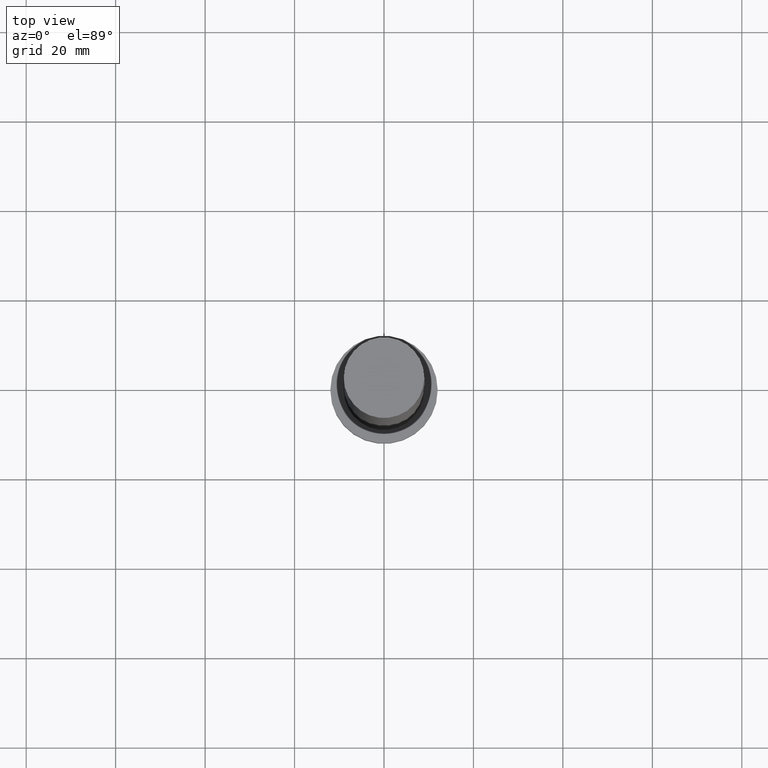
[diagram: clean part render]
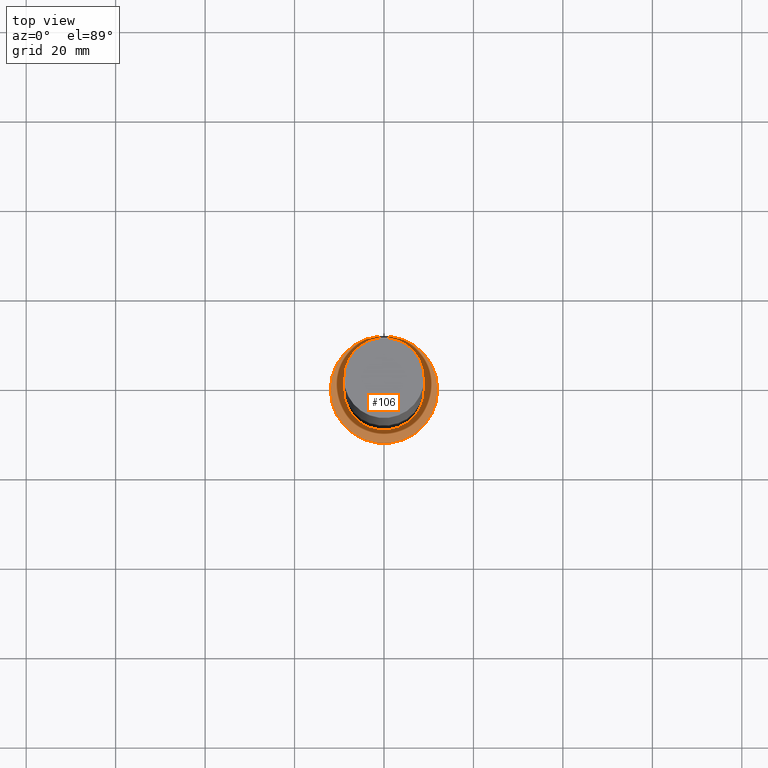
[diagram: same view with one face highlighted and labeled with its STEP entity id]
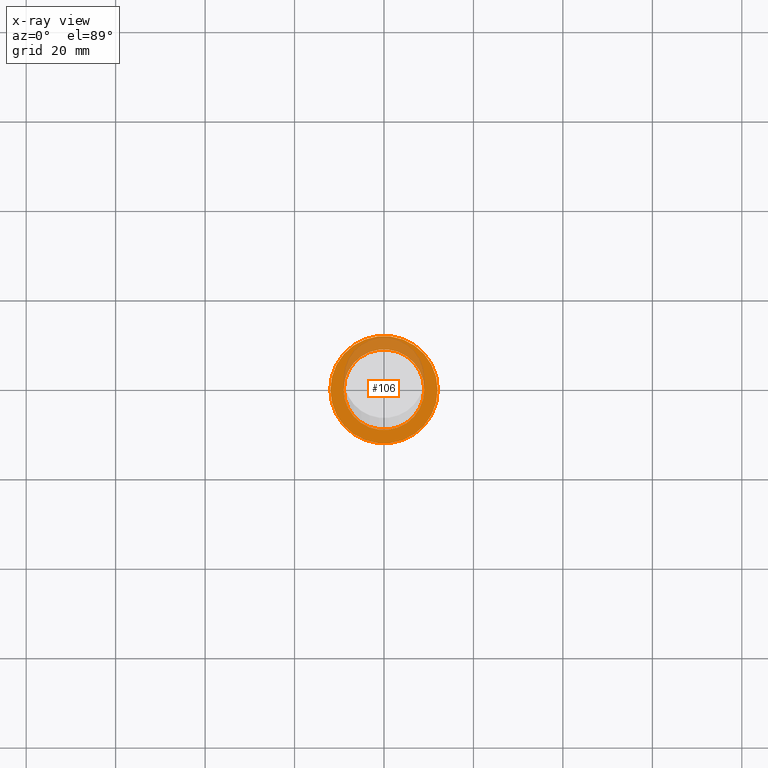
[diagram: x-ray of the same camera — body ghosted, the highlighted face saturated]
A machine part, top view. The second image highlights one B-rep face of the part: STEP entity #106.
The next image is the same camera in x-ray: the body ghosted, the highlighted face saturated — about 25% of this face is hidden behind the body in this view.
In plain terms, the highlighted planar face has unit normal (0, 0, 1).
Its self-contained STEP definition (entity closure, byte-faithful):
#4 = CARTESIAN_POINT ( 'NONE',  ( 0.000000000000000000, 0.000000000000000000, 7.000000000000000000 ) ) ;
#8 = AXIS2_PLACEMENT_3D ( 'NONE', #192, #113, #188 ) ;
#12 = VERTEX_POINT ( 'NONE', #15 ) ;
#15 = CARTESIAN_POINT ( 'NONE',  ( -9.000000000000000000, 0.000000000000000000, 7.000000000000000000 ) ) ;
#21 = DIRECTION ( 'NONE',  ( 0.000000000000000000, 0.000000000000000000, 1.000000000000000000 ) ) ;
#22 = DIRECTION ( 'NONE',  ( 0.000000000000000000, 0.000000000000000000, 1.000000000000000000 ) ) ;
#28 = DIRECTION ( 'NONE',  ( 0.000000000000000000, 0.000000000000000000, 1.000000000000000000 ) ) ;
#41 = CARTESIAN_POINT ( 'NONE',  ( 0.000000000000000000, 0.000000000000000000, 7.000000000000000000 ) ) ;
#45 = CARTESIAN_POINT ( 'NONE',  ( 0.000000000000000000, 0.000000000000000000, 7.000000000000000000 ) ) ;
#47 = CIRCLE ( 'NONE', #176, 12.00000000000000178 ) ;
#58 = AXIS2_PLACEMENT_3D ( 'NONE', #45, #28, #74 ) ;
#62 = CARTESIAN_POINT ( 'NONE',  ( 9.000000000000000000, 1.102182119232617714E-15, 7.000000000000000000 ) ) ;
#65 = EDGE_LOOP ( 'NONE', ( #166, #107 ) ) ;
#68 = EDGE_CURVE ( 'NONE', #12, #222, #129, .T. ) ;
#74 = DIRECTION ( 'NONE',  ( 1.000000000000000000, 0.000000000000000000, 0.000000000000000000 ) ) ;
#78 = EDGE_CURVE ( 'NONE', #84, #204, #174, .T. ) ;
#79 = AXIS2_PLACEMENT_3D ( 'NONE', #41, #101, #216 ) ;
#84 = VERTEX_POINT ( 'NONE', #114 ) ;
#101 = DIRECTION ( 'NONE',  ( 0.000000000000000000, 0.000000000000000000, 1.000000000000000000 ) ) ;
#106 = ADVANCED_FACE ( 'NONE', ( #111, #214 ), #138, .T. ) ;
#107 = ORIENTED_EDGE ( 'NONE', *, *, #122, .F. ) ;
#111 = FACE_BOUND ( 'NONE', #65, .T. ) ;
#113 = DIRECTION ( 'NONE',  ( 0.000000000000000000, 0.000000000000000000, 1.000000000000000000 ) ) ;
#114 = CARTESIAN_POINT ( 'NONE',  ( 12.00000000000000178, 1.469576158976824144E-15, 7.000000000000000000 ) ) ;
#122 = EDGE_CURVE ( 'NONE', #222, #12, #225, .T. ) ;
#129 = CIRCLE ( 'NONE', #8, 9.000000000000000000 ) ;
#138 = PLANE ( 'NONE',  #79 ) ;
#141 = DIRECTION ( 'NONE',  ( 1.000000000000000000, 0.000000000000000000, 0.000000000000000000 ) ) ;
#146 = ORIENTED_EDGE ( 'NONE', *, *, #78, .T. ) ;
#147 = DIRECTION ( 'NONE',  ( 1.000000000000000000, 0.000000000000000000, 0.000000000000000000 ) ) ;
#166 = ORIENTED_EDGE ( 'NONE', *, *, #68, .F. ) ;
#174 = CIRCLE ( 'NONE', #218, 12.00000000000000178 ) ;
#176 = AXIS2_PLACEMENT_3D ( 'NONE', #4, #22, #141 ) ;
#188 = DIRECTION ( 'NONE',  ( 1.000000000000000000, 0.000000000000000000, 0.000000000000000000 ) ) ;
#191 = CARTESIAN_POINT ( 'NONE',  ( 0.000000000000000000, 0.000000000000000000, 7.000000000000000000 ) ) ;
#192 = CARTESIAN_POINT ( 'NONE',  ( 0.000000000000000000, 0.000000000000000000, 7.000000000000000000 ) ) ;
#196 = CARTESIAN_POINT ( 'NONE',  ( -12.00000000000000178, 0.000000000000000000, 7.000000000000000000 ) ) ;
#199 = ORIENTED_EDGE ( 'NONE', *, *, #213, .T. ) ;
#204 = VERTEX_POINT ( 'NONE', #196 ) ;
#213 = EDGE_CURVE ( 'NONE', #204, #84, #47, .T. ) ;
#214 = FACE_OUTER_BOUND ( 'NONE', #246, .T. ) ;
#216 = DIRECTION ( 'NONE',  ( 1.000000000000000000, 0.000000000000000000, -0.000000000000000000 ) ) ;
#218 = AXIS2_PLACEMENT_3D ( 'NONE', #191, #21, #147 ) ;
#222 = VERTEX_POINT ( 'NONE', #62 ) ;
#225 = CIRCLE ( 'NONE', #58, 9.000000000000000000 ) ;
#246 = EDGE_LOOP ( 'NONE', ( #199, #146 ) ) ;